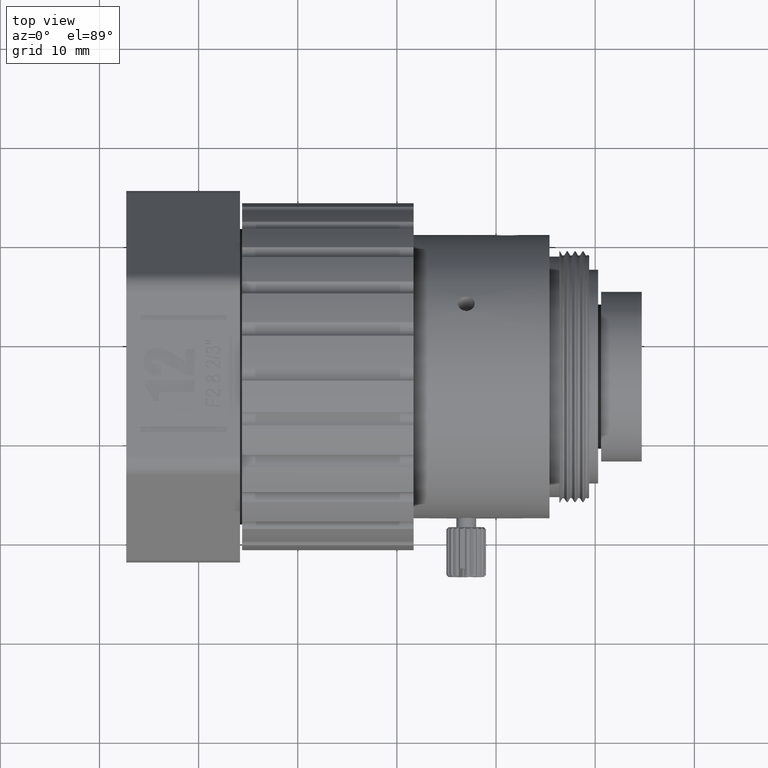
[diagram: clean part render]
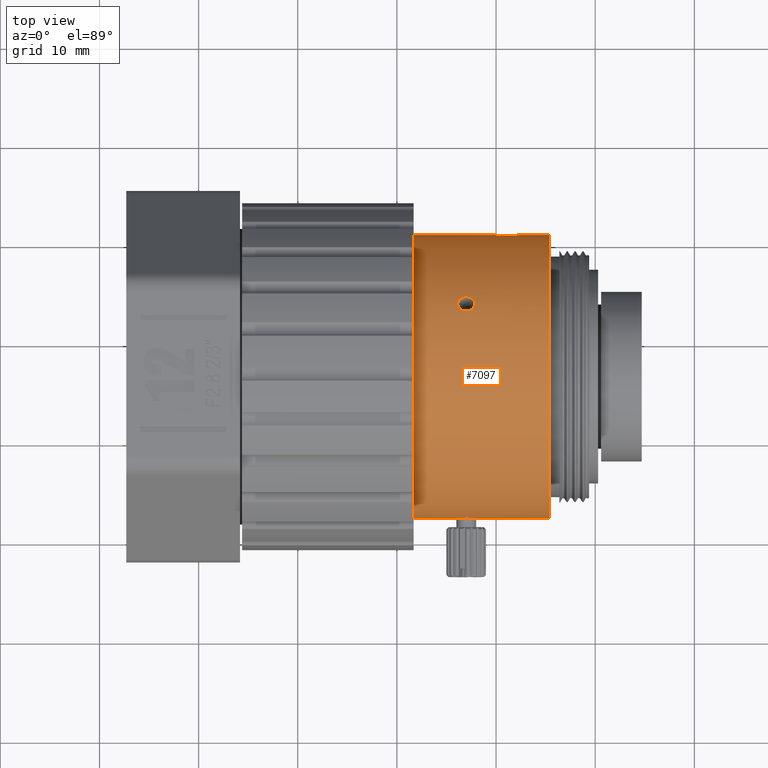
[diagram: same view with one face highlighted and labeled with its STEP entity id]
A machine part, top view. The second image highlights one B-rep face of the part: STEP entity #7097.
In plain terms, the highlighted cylindrical surface (bore or boss wall) has radius 14.3 mm, axis along (1, -0, -0).
Its self-contained STEP definition (entity closure, byte-faithful):
#77 = DIRECTION ( 'NONE',  ( 1.000000000000000000, -0.000000000000000000, -0.000000000000000000 ) ) ;
#328 = CARTESIAN_POINT ( 'NONE',  ( 10457.83927742605738, -3057.646035306092017, 0.1114656669171501802 ) ) ;
#399 = CARTESIAN_POINT ( 'NONE',  ( 10456.30860723796468, -3057.636758587859276, 0.5212214595580578758 ) ) ;
#490 = ORIENTED_EDGE ( 'NONE', *, *, #13166, .T. ) ;
#524 = CARTESIAN_POINT ( 'NONE',  ( 10457.83942973783996, -3036.291554458785413, 12.43931856572615757 ) ) ;
#619 = CARTESIAN_POINT ( 'NONE',  ( 10456.24632349589592, -3036.569324910722571, -12.59272992130355107 ) ) ;
#690 = CARTESIAN_POINT ( 'NONE',  ( 10456.16125840755012, -3036.388724863201332, -12.49385774665149995 ) ) ;
#756 = CARTESIAN_POINT ( 'NONE',  ( 10462.20837841292268, -3029.071384129889793, -0.8608692206809507308 ) ) ;
#831 = CARTESIAN_POINT ( 'NONE',  ( 10461.79067550421314, -3029.097663164272944, -1.215118538068073795 ) ) ;
#836 = CARTESIAN_POINT ( 'NONE',  ( 10456.46669243043834, -3035.615605129227788, -12.03065479707591479 ) ) ;
#900 = CARTESIAN_POINT ( 'NONE',  ( 10461.08935378243405, -3029.114730891623367, -1.400000000000014344 ) ) ;
#905 = CARTESIAN_POINT ( 'NONE',  ( 10456.16177793807947, -3036.003321444138692, -12.27131068950929382 ) ) ;
#968 = CARTESIAN_POINT ( 'NONE',  ( 10460.72225944567981, -3029.111004892552501, -1.363423419065271869 ) ) ;
#1047 = CARTESIAN_POINT ( 'NONE',  ( 10462.21057377370744, -3029.071225823082386, 0.8585009982883268220 ) ) ;
#1221 = AXIS2_PLACEMENT_3D ( 'NONE', #7551, #9900, #7830 ) ;
#1354 = CARTESIAN_POINT ( 'NONE',  ( 10457.41774542119856, -3057.626811248972444, 0.7425588593340550769 ) ) ;
#1432 = CARTESIAN_POINT ( 'NONE',  ( 10456.98935378243186, -3057.620755258274585, -0.8500000000000133005 ) ) ;
#1502 = CARTESIAN_POINT ( 'NONE',  ( 10456.13927782695100, -3057.646044359589268, 0.1102981729169596053 ) ) ;
#1627 = CARTESIAN_POINT ( 'NONE',  ( 10457.41774542119310, -3035.562575244817708, 11.99623373712601548 ) ) ;
#1642 = CARTESIAN_POINT ( 'NONE',  ( 10456.13943013887729, -3057.646035306089288, -0.1114657667403566588 ) ) ;
#1709 = CARTESIAN_POINT ( 'NONE',  ( 10457.43226985704132, -3057.626746409425778, -0.7593918087177606857 ) ) ;
#1717 = CARTESIAN_POINT ( 'NONE',  ( 10456.56096282716499, -3035.562574899336141, -11.99623351273431915 ) ) ;
#1765 = CARTESIAN_POINT ( 'NONE',  ( 10457.43226985703768, -3036.863335098355492, 12.74715291845873999 ) ) ;
#1790 = CARTESIAN_POINT ( 'NONE',  ( 10456.30991116893711, -3035.748088955666390, -12.11476030744859145 ) ) ;
#1866 = CARTESIAN_POINT ( 'NONE',  ( 10457.73212374849754, -3036.569574582587393, -12.59285888975698064 ) ) ;
#1947 = EDGE_CURVE ( 'NONE', #7327, #7327, #14359, .T. ) ;
#1971 = DIRECTION ( 'NONE',  ( 0.000000000000000000, 0.000000000000000000, -1.000000000000000000 ) ) ;
#2003 = CARTESIAN_POINT ( 'NONE',  ( 10462.45237767730578, -3029.049776362277953, -0.3679763575055203240 ) ) ;
#2012 = EDGE_LOOP ( 'NONE', ( #8723 ) ) ;
#2047 = B_SPLINE_CURVE_WITH_KNOTS ( 'NONE', 3,
 ( #12999, #4030, #10667, #1717, #836, #1790, #7364, #905, #2868, #11899, #690, #619, #5267, #13072, #13877, #5114, #5338, #12777, #10596, #13945, #1866, #5050, #3954, #9572, #14018, #12847, #11829, #8466, #12923, #2942 ),
 .UNSPECIFIED., .T., .F.,
 ( 4, 2, 2, 2, 2, 2, 2, 2, 2, 2, 2, 2, 2, 2, 4 ),
 ( 0.000000000000000000, 0.0003321892455475820372, 0.0006643784910951640744, 0.0009965677366427462200, 0.001328756982190328149, 0.001660946227737910294, 0.001993135473285492440, 0.002657513964376944857, 0.002989703209922671499, 0.003321892455468397273, 0.003654081701014123915, 0.003986270946559849690, 0.004318460192105576766, 0.004650649437651302107, 0.005315027928741969561 ),
 .UNSPECIFIED. ) ;
#2073 = CARTESIAN_POINT ( 'NONE',  ( 10462.48922436555767, -3029.046047099148836, -0.1836932407368304654 ) ) ;
#2142 = CARTESIAN_POINT ( 'NONE',  ( 10459.73406932107537, -3029.050353950532099, -0.3627468900842286681 ) ) ;
#2211 = CARTESIAN_POINT ( 'NONE',  ( 10462.31308433493359, -3029.062384883595769, 0.7043762801998675327 ) ) ;
#2741 = ORIENTED_EDGE ( 'NONE', *, *, #4618, .T. ) ;
#2846 = CARTESIAN_POINT ( 'NONE',  ( 10456.24658400504632, -3036.569574893633671, 12.59285905776450321 ) ) ;
#2868 = CARTESIAN_POINT ( 'NONE',  ( 10456.13943013887183, -3036.099505866599429, -12.32842880525052287 ) ) ;
#2942 = CARTESIAN_POINT ( 'NONE',  ( 10456.98935378243186, -3035.472556482938671, -11.93726852500496527 ) ) ;
#3102 = B_SPLINE_CURVE_WITH_KNOTS ( 'NONE', 3,
 ( #10791, #9550, #14068, #6038, #5169, #12752, #2846, #13923, #8440, #6105, #8516, #13992, #3933, #5247, #12970, #10497, #7336, #1627, #8367, #12822, #10714, #4076, #7265, #524, #14135, #12682, #11732, #1765, #8301, #4954 ),
 .UNSPECIFIED., .T., .F.,
 ( 4, 2, 2, 2, 2, 2, 2, 2, 2, 2, 2, 2, 2, 2, 4 ),
 ( 0.000000000000000000, 0.0003321892455475758572, 0.0006643784910951517145, 0.0009965677366427275717, 0.001328756982190303429, 0.001660946227737879069, 0.001993135473285455143, 0.002657513964376893249, 0.002989703209922612518, 0.003321892455468332221, 0.003654081701014051924, 0.003986270946559771627, 0.004318460192105490897, 0.004650649437651210166, 0.005315027928743470964 ),
 .UNSPECIFIED. ) ;
#3155 = CARTESIAN_POINT ( 'NONE',  ( 10459.86562260966093, -3029.062384829248003, -0.7043751142717046276 ) ) ;
#3239 = CARTESIAN_POINT ( 'NONE',  ( 10456.98935378243186, -3036.944799669372514, 12.78726852500507327 ) ) ;
#3288 = CARTESIAN_POINT ( 'NONE',  ( 10460.22932854271858, -3029.089363355635214, -1.120051196483248246 ) ) ;
#3762 = ORIENTED_EDGE ( 'NONE', *, *, #5671, .T. ) ;
#3933 = CARTESIAN_POINT ( 'NONE',  ( 10456.30860723796468, -3035.749285386389147, 12.11551708519103521 ) ) ;
#3954 = CARTESIAN_POINT ( 'NONE',  ( 10457.83927742606102, -3036.292570151446853, -12.43989452208301749 ) ) ;
#3970 = VERTEX_POINT ( 'NONE', #12579 ) ;
#3995 = CARTESIAN_POINT ( 'NONE',  ( 10451.68731230182857, -3043.346037136861469, -14.30000270789389205 ) ) ;
#4021 = CARTESIAN_POINT ( 'NONE',  ( 10456.98935378243186, -3057.620755258274585, -0.8500000000000133005 ) ) ;
#4030 = CARTESIAN_POINT ( 'NONE',  ( 10456.87702782700580, -3035.472556482938671, -11.93726852500496172 ) ) ;
#4076 = CARTESIAN_POINT ( 'NONE',  ( 10457.81692966713672, -3036.003321615189634, 12.27131079121537915 ) ) ;
#4234 = CARTESIAN_POINT ( 'NONE',  ( 10462.48033648506680, -3029.046925462721447, 0.1831622985512846025 ) ) ;
#4380 = CARTESIAN_POINT ( 'NONE',  ( 10462.01479525304057, -3029.084817848655803, -1.054460084201289671 ) ) ;
#4416 = ORIENTED_EDGE ( 'NONE', *, *, #13743, .T. ) ;
#4432 = FACE_OUTER_BOUND ( 'NONE', #8635, .T. ) ;
#4579 = FACE_BOUND ( 'NONE', #10727, .T. ) ;
#4618 = EDGE_CURVE ( 'NONE', #5372, #5372, #2047, .T. ) ;
#4729 = FACE_BOUND ( 'NONE', #5021, .T. ) ;
#4757 = CARTESIAN_POINT ( 'NONE',  ( 10457.83942973784542, -3057.646044359586085, -0.1102980730923516506 ) ) ;
#4828 = CARTESIAN_POINT ( 'NONE',  ( 10456.30991116893529, -3057.636701414468916, -0.5226359878284209115 ) ) ;
#4954 = CARTESIAN_POINT ( 'NONE',  ( 10456.98935378243186, -3036.944799669372514, 12.78726852500507150 ) ) ;
#5021 = EDGE_LOOP ( 'NONE', ( #9390 ) ) ;
#5050 = CARTESIAN_POINT ( 'NONE',  ( 10457.81692966713490, -3036.390128014772017, -12.49463357013800113 ) ) ;
#5114 = CARTESIAN_POINT ( 'NONE',  ( 10457.10168082283963, -3036.944799525721010, -12.78726845309428306 ) ) ;
#5169 = CARTESIAN_POINT ( 'NONE',  ( 10456.46669243044016, -3036.792400462249589, 12.71007789937736021 ) ) ;
#5190 = CARTESIAN_POINT ( 'NONE',  ( 10460.46841347411646, -3029.101442657290136, 1.258113833066945464 ) ) ;
#5214 = VERTEX_POINT ( 'NONE', #13227 ) ;
#5247 = CARTESIAN_POINT ( 'NONE',  ( 10456.54643841072357, -3035.548029501712335, 11.98776084947957621 ) ) ;
#5263 = CARTESIAN_POINT ( 'NONE',  ( 10460.38802982666857, -3029.097663053182259, 1.215117237482326917 ) ) ;
#5267 = CARTESIAN_POINT ( 'NONE',  ( 10456.30860723796650, -3036.652067436338712, -12.63673854474898839 ) ) ;
#5338 = CARTESIAN_POINT ( 'NONE',  ( 10457.21189980034433, -3036.924961799713401, -12.77738996881995170 ) ) ;
#5367 = DIRECTION ( 'NONE',  ( 1.000000000000000000, -0.000000000000000000, -0.000000000000000000 ) ) ;
#5372 = VERTEX_POINT ( 'NONE', #6308 ) ;
#5404 = CARTESIAN_POINT ( 'NONE',  ( 10462.48941796687723, -3029.046028145178752, 0.09036312009869583439 ) ) ;
#5478 = CARTESIAN_POINT ( 'NONE',  ( 10460.72266425066118, -3029.111015220504214, 1.363527748543488460 ) ) ;
#5671 = EDGE_CURVE ( 'NONE', #3970, #3970, #6672, .T. ) ;
#5841 = CARTESIAN_POINT ( 'NONE',  ( 10456.87702782700399, -3057.620755258274130, -0.8500000000000130784 ) ) ;
#5985 = CARTESIAN_POINT ( 'NONE',  ( 10456.76680874887825, -3057.622119096066399, -0.8278809027466155213 ) ) ;
#6038 = CARTESIAN_POINT ( 'NONE',  ( 10456.56096282716499, -3036.848725283865861, 12.73879278346021415 ) ) ;
#6105 = CARTESIAN_POINT ( 'NONE',  ( 10456.13927782695100, -3036.100512505760889, 12.32902044272500675 ) ) ;
#6308 = CARTESIAN_POINT ( 'NONE',  ( 10456.98935378243186, -3035.472556482938671, -11.93726852500496349 ) ) ;
#6339 = CARTESIAN_POINT ( 'NONE',  ( 10459.69837104720682, -3029.046925459474096, -0.1831619713577447850 ) ) ;
#6404 = CARTESIAN_POINT ( 'NONE',  ( 10461.45644500833805, -3029.111004977633002, 1.363424294574676843 ) ) ;
#6473 = CARTESIAN_POINT ( 'NONE',  ( 10461.94937718769143, -3029.089363470372973, 1.120052666308350320 ) ) ;
#6544 = CARTESIAN_POINT ( 'NONE',  ( 10461.79546496524745, -3029.098231073870920, 1.222738227370542052 ) ) ;
#6672 = B_SPLINE_CURVE_WITH_KNOTS ( 'NONE', 3,
 ( #12036, #14367, #11020, #12103, #831, #7571, #4380, #756, #14220, #2003, #2073, #5404, #4234, #12993, #8749, #2211, #1047, #6473, #6544, #6404, #14087, #8823, #5478, #5190, #5263, #9783, #8680, #13140, #9857, #10877, #7720, #12179, #6339, #2142, #14295, #3155, #10948, #3288, #9710, #968, #14157, #900 ),
 .UNSPECIFIED., .T., .F.,
 ( 4, 2, 2, 2, 2, 2, 2, 2, 2, 2, 2, 2, 2, 2, 2, 2, 2, 2, 2, 2, 4 ),
 ( 0.000000000000000000, 0.0005473371281830225268, 0.0008210056922721122247, 0.001094674256361202139, 0.001642011384539382403, 0.002189348512717562666, 0.002463017076806653122, 0.002736685640895743579, 0.003284022769071856269, 0.003831359897247969392, 0.004378697025424082949, 0.004926034153600196072, 0.005199702717688275619, 0.005473371281776355166, 0.006020708409948821033, 0.006568045538121288635, 0.006841714102207520701, 0.007115382666293752767, 0.007662719794464239315, 0.008210056922634725862, 0.008757394050805210675 ),
 .UNSPECIFIED. ) ;
#6746 = FACE_BOUND ( 'NONE', #12643, .T. ) ;
#6850 = CARTESIAN_POINT ( 'NONE',  ( 10457.10168082284508, -3057.620755267822915, 0.8499998396395694877 ) ) ;
#7023 = CIRCLE ( 'NONE', #1221, 14.30000270789389205 ) ;
#7073 = CARTESIAN_POINT ( 'NONE',  ( 10457.81744919585253, -3057.644691476020853, -0.2217195058461416401 ) ) ;
#7097 = ADVANCED_FACE ( 'NONE', ( #11295, #4579, #4432, #4729, #6746, #10049 ), #9022, .T. ) ;
#7145 = CARTESIAN_POINT ( 'NONE',  ( 10456.24658400504632, -3057.640004108776338, -0.4278410784611711981 ) ) ;
#7265 = CARTESIAN_POINT ( 'NONE',  ( 10457.83927742605556, -3036.099505953046901, 12.32842885516573261 ) ) ;
#7327 = VERTEX_POINT ( 'NONE', #3995 ) ;
#7336 = CARTESIAN_POINT ( 'NONE',  ( 10457.21189980033887, -3035.491030498378223, 11.94950934599453340 ) ) ;
#7364 = CARTESIAN_POINT ( 'NONE',  ( 10456.24658400504813, -3035.828532408174397, -12.16501797930317785 ) ) ;
#7551 = CARTESIAN_POINT ( 'NONE',  ( 10465.38935378243150, -3043.346037136861469, 0.000000000000000000 ) ) ;
#7571 = CARTESIAN_POINT ( 'NONE',  ( 10461.94280641943260, -3029.089365361552154, -1.113545605439387520 ) ) ;
#7610 = CARTESIAN_POINT ( 'NONE',  ( 10451.68731230182857, -3043.346037136861469, 0.000000000000000000 ) ) ;
#7720 = CARTESIAN_POINT ( 'NONE',  ( 10459.68948319907759, -3029.046047099123371, 0.1836929169715127430 ) ) ;
#7830 = DIRECTION ( 'NONE',  ( 0.000000000000000000, 0.000000000000000000, -1.000000000000000000 ) ) ;
#7911 = DIRECTION ( 'NONE',  ( 0.000000000000000000, 0.000000000000000000, -1.000000000000000000 ) ) ;
#8069 = CARTESIAN_POINT ( 'NONE',  ( 10473.70570216309352, -3043.346037136861469, 0.000000000000000000 ) ) ;
#8122 = VERTEX_POINT ( 'NONE', #3239 ) ;
#8175 = CARTESIAN_POINT ( 'NONE',  ( 10457.51201568681790, -3057.630105840028591, 0.6794226603445648882 ) ) ;
#8301 = CARTESIAN_POINT ( 'NONE',  ( 10457.21400569328762, -3036.944799669372969, 12.78726852500507327 ) ) ;
#8319 = CARTESIAN_POINT ( 'NONE',  ( 10456.46669243044198, -3057.630105819108849, -0.6794231023014101201 ) ) ;
#8367 = CARTESIAN_POINT ( 'NONE',  ( 10457.51201568681608, -3035.615605501513528, 12.03065503617111531 ) ) ;
#8440 = CARTESIAN_POINT ( 'NONE',  ( 10456.13943013887729, -3036.292570237897962, 12.43989457199094417 ) ) ;
#8466 = CARTESIAN_POINT ( 'NONE',  ( 10457.43226985703950, -3035.548029902803592, -11.98776110974084830 ) ) ;
#8494 = B_SPLINE_CURVE_WITH_KNOTS ( 'NONE', 3,
 ( #1432, #5841, #5985, #11466, #8319, #4828, #7145, #10301, #1642, #1502, #11608, #10515, #399, #9284, #9429, #6850, #11324, #1354, #8175, #10227, #9124, #12632, #328, #4757, #7073, #10587, #9639, #1709, #9566, #4021 ),
 .UNSPECIFIED., .T., .F.,
 ( 4, 2, 2, 2, 2, 2, 2, 2, 2, 2, 2, 2, 2, 2, 4 ),
 ( 0.000000000000000000, 0.0003321892455475399159, 0.0006643784910950798319, 0.0009965677366426198020, 0.001328756982190159664, 0.001660946227737699742, 0.001993135473285239604, 0.002657513964376606152, 0.002989703209922289426, 0.003321892455467973133, 0.003654081701013656407, 0.003986270946559339681, 0.004318460192105023389, 0.004650649437650707096, 0.005315027928742073644 ),
 .UNSPECIFIED. ) ;
#8516 = CARTESIAN_POINT ( 'NONE',  ( 10456.16125840755012, -3036.004695073823314, 12.27213804437711353 ) ) ;
#8557 = VERTEX_POINT ( 'NONE', #12054 ) ;
#8635 = EDGE_LOOP ( 'NONE', ( #4416 ) ) ;
#8680 = CARTESIAN_POINT ( 'NONE',  ( 10460.16391073087289, -3029.084817745123928, 1.054458682081185872 ) ) ;
#8723 = ORIENTED_EDGE ( 'NONE', *, *, #1947, .T. ) ;
#8749 = CARTESIAN_POINT ( 'NONE',  ( 10462.41821805998734, -3029.052866052065838, 0.4500392584583024491 ) ) ;
#8823 = CARTESIAN_POINT ( 'NONE',  ( 10460.90426902616673, -3029.114730840437005, 1.399999479683981196 ) ) ;
#9022 = CYLINDRICAL_SURFACE ( 'NONE', #12828, 14.30000270789389205 ) ;
#9124 = CARTESIAN_POINT ( 'NONE',  ( 10457.73212374850482, -3057.640004118800789, 0.4278407250836032127 ) ) ;
#9284 = CARTESIAN_POINT ( 'NONE',  ( 10456.54643841072175, -3057.626746384577928, 0.7593922862046639244 ) ) ;
#9390 = ORIENTED_EDGE ( 'NONE', *, *, #10926, .T. ) ;
#9429 = CARTESIAN_POINT ( 'NONE',  ( 10456.76470334205624, -3057.620755239175196, 0.8500003207183040033 ) ) ;
#9550 = CARTESIAN_POINT ( 'NONE',  ( 10456.87702782700399, -3036.944799669372060, 12.78726852500507150 ) ) ;
#9566 = CARTESIAN_POINT ( 'NONE',  ( 10457.21400569328762, -3057.620755258275040, -0.8500000000000139666 ) ) ;
#9572 = CARTESIAN_POINT ( 'NONE',  ( 10457.83942973784360, -3036.100512592213363, -12.32902049263394950 ) ) ;
#9639 = CARTESIAN_POINT ( 'NONE',  ( 10457.67010061778637, -3057.636758602475311, -0.5212210550463107772 ) ) ;
#9710 = CARTESIAN_POINT ( 'NONE',  ( 10460.38324030349577, -3029.098230955221879, -1.222736859094170070 ) ) ;
#9783 = CARTESIAN_POINT ( 'NONE',  ( 10460.23589933557014, -3029.089365252076277, 1.113544206077453413 ) ) ;
#9857 = CARTESIAN_POINT ( 'NONE',  ( 10459.86603479745463, -3029.062418989865819, 0.7047916578124017173 ) ) ;
#9900 = DIRECTION ( 'NONE',  ( -1.000000000000000000, 0.000000000000000000, 0.000000000000000000 ) ) ;
#10049 = FACE_BOUND ( 'NONE', #10820, .T. ) ;
#10227 = CARTESIAN_POINT ( 'NONE',  ( 10457.66879669040645, -3057.636701429176355, 0.5226355828803241899 ) ) ;
#10301 = CARTESIAN_POINT ( 'NONE',  ( 10456.16177793807583, -3057.644661778068894, -0.2233229779088309885 ) ) ;
#10497 = CARTESIAN_POINT ( 'NONE',  ( 10457.10168082284690, -3035.472556617039572, 11.93726861345473722 ) ) ;
#10515 = CARTESIAN_POINT ( 'NONE',  ( 10456.24632349589956, -3057.640017264777271, 0.4275600186789718093 ) ) ;
#10587 = CARTESIAN_POINT ( 'NONE',  ( 10457.73238426017087, -3057.640017274940874, -0.4275596591702763294 ) ) ;
#10596 = CARTESIAN_POINT ( 'NONE',  ( 10457.51201568681608, -3036.792400069043197, -12.71007769651567720 ) ) ;
#10667 = CARTESIAN_POINT ( 'NONE',  ( 10456.76680874887643, -3035.491030264172423, -11.94950919180536708 ) ) ;
#10714 = CARTESIAN_POINT ( 'NONE',  ( 10457.73212374849754, -3035.828532709197134, 12.16501816467333974 ) ) ;
#10727 = EDGE_LOOP ( 'NONE', ( #490 ) ) ;
#10791 = CARTESIAN_POINT ( 'NONE',  ( 10456.98935378243186, -3036.944799669372514, 12.78726852500507150 ) ) ;
#10820 = EDGE_LOOP ( 'NONE', ( #3762 ) ) ;
#10877 = CARTESIAN_POINT ( 'NONE',  ( 10459.72632975651140, -3029.049776348617343, 0.3679757121130980413 ) ) ;
#10926 = EDGE_CURVE ( 'NONE', #8122, #8122, #3102, .T. ) ;
#10948 = CARTESIAN_POINT ( 'NONE',  ( 10459.96813284842028, -3029.071225744965886, -0.8584996871454780853 ) ) ;
#11020 = CARTESIAN_POINT ( 'NONE',  ( 10461.45604012298827, -3029.111015308526476, -1.363528656417956730 ) ) ;
#11295 = FACE_OUTER_BOUND ( 'NONE', #2012, .T. ) ;
#11324 = CARTESIAN_POINT ( 'NONE',  ( 10457.21189980034069, -3057.622119112495056, 0.8278806228254292909 ) ) ;
#11466 = CARTESIAN_POINT ( 'NONE',  ( 10456.56096282716317, -3057.626811227381040, -0.7425592707258542591 ) ) ;
#11578 = AXIS2_PLACEMENT_3D ( 'NONE', #7610, #5367, #1971 ) ;
#11608 = CARTESIAN_POINT ( 'NONE',  ( 10456.16125840755012, -3057.644691473561579, 0.2217197022744075430 ) ) ;
#11732 = CARTESIAN_POINT ( 'NONE',  ( 10457.67010061779001, -3036.652067078711752, 12.63673835515257871 ) ) ;
#11829 = CARTESIAN_POINT ( 'NONE',  ( 10457.67010061779001, -3035.749285729396888, -12.11551730010614847 ) ) ;
#11899 = CARTESIAN_POINT ( 'NONE',  ( 10456.13927782694918, -3036.291554545233794, -12.43931861564191088 ) ) ;
#12036 = CARTESIAN_POINT ( 'NONE',  ( 10461.08935378243405, -3029.114730891623367, -1.400000000000014344 ) ) ;
#12054 = CARTESIAN_POINT ( 'NONE',  ( 10456.98935378243186, -3057.620755258273675, -0.8500000000000130784 ) ) ;
#12103 = CARTESIAN_POINT ( 'NONE',  ( 10461.71029163134517, -3029.101442765951106, -1.258115060354918047 ) ) ;
#12179 = CARTESIAN_POINT ( 'NONE',  ( 10459.68928959810000, -3029.046028145189666, -0.09036295821102342807 ) ) ;
#12579 = CARTESIAN_POINT ( 'NONE',  ( 10461.08935378243041, -3029.114730891622912, -1.400000000000014122 ) ) ;
#12632 = CARTESIAN_POINT ( 'NONE',  ( 10457.81692966713490, -3057.644661780624119, 0.2233227789225555038 ) ) ;
#12643 = EDGE_LOOP ( 'NONE', ( #2741 ) ) ;
#12682 = CARTESIAN_POINT ( 'NONE',  ( 10457.73238426017087, -3036.569324594296631, 12.59272975035312392 ) ) ;
#12752 = CARTESIAN_POINT ( 'NONE',  ( 10456.30991116893892, -3036.653321040449555, 12.63739629527703201 ) ) ;
#12777 = CARTESIAN_POINT ( 'NONE',  ( 10457.41774542119128, -3036.848724916796073, -12.73879259646004591 ) ) ;
#12822 = CARTESIAN_POINT ( 'NONE',  ( 10457.66879669040281, -3035.748089299009280, 12.11476052265969194 ) ) ;
#12828 = AXIS2_PLACEMENT_3D ( 'NONE', #8069, #77, #7911 ) ;
#12847 = CARTESIAN_POINT ( 'NONE',  ( 10457.73238426017269, -3035.828769541346901, -12.16517009118279979 ) ) ;
#12923 = CARTESIAN_POINT ( 'NONE',  ( 10457.21400569328762, -3035.472556482939126, -11.93726852500497237 ) ) ;
#12970 = CARTESIAN_POINT ( 'NONE',  ( 10456.76470334205624, -3035.472556214736414, 11.93726834810700765 ) ) ;
#12993 = CARTESIAN_POINT ( 'NONE',  ( 10462.44463808659020, -3029.050353965511931, 0.3627475176219060460 ) ) ;
#12999 = CARTESIAN_POINT ( 'NONE',  ( 10456.98935378243186, -3035.472556482938671, -11.93726852500496527 ) ) ;
#13072 = CARTESIAN_POINT ( 'NONE',  ( 10456.54643841072539, -3036.863335524295508, -12.74715313568414743 ) ) ;
#13140 = CARTESIAN_POINT ( 'NONE',  ( 10459.97032819729247, -3029.071384051288987, 0.8608679082005116223 ) ) ;
#13166 = EDGE_CURVE ( 'NONE', #8557, #8557, #8494, .T. ) ;
#13227 = CARTESIAN_POINT ( 'NONE',  ( 10465.38935378243150, -3043.346037136861469, -14.30000270789389205 ) ) ;
#13743 = EDGE_CURVE ( 'NONE', #5214, #5214, #7023, .T. ) ;
#13877 = CARTESIAN_POINT ( 'NONE',  ( 10456.76470334205442, -3036.944799956670067, -12.78726866882527879 ) ) ;
#13923 = CARTESIAN_POINT ( 'NONE',  ( 10456.16177793807947, -3036.390128188375456, 12.49463366741828807 ) ) ;
#13945 = CARTESIAN_POINT ( 'NONE',  ( 10457.66879669040100, -3036.653320682399226, -12.63739610554002724 ) ) ;
#13992 = CARTESIAN_POINT ( 'NONE',  ( 10456.24632349589956, -3035.828769235086838, 12.16516990262456588 ) ) ;
#14018 = CARTESIAN_POINT ( 'NONE',  ( 10457.81744919585071, -3036.004695242704202, -12.27213814472022868 ) ) ;
#14068 = CARTESIAN_POINT ( 'NONE',  ( 10456.76680874887643, -3036.924962050346949, 12.77739009455201469 ) ) ;
#14087 = CARTESIAN_POINT ( 'NONE',  ( 10461.27443066716478, -3029.114730942807455, 1.400000520304991003 ) ) ;
#14135 = CARTESIAN_POINT ( 'NONE',  ( 10457.81744919585071, -3036.388724691861171, 12.49385765056641873 ) ) ;
#14157 = CARTESIAN_POINT ( 'NONE',  ( 10460.90427254477254, -3029.114730891624276, -1.400000000000014566 ) ) ;
#14220 = CARTESIAN_POINT ( 'NONE',  ( 10462.31267215574735, -3029.062419043414138, -0.7047928030230640184 ) ) ;
#14295 = CARTESIAN_POINT ( 'NONE',  ( 10459.76048925609211, -3029.052866028634071, -0.4500384892917004831 ) ) ;
#14359 = CIRCLE ( 'NONE', #11578, 14.30000270789389205 ) ;
#14367 = CARTESIAN_POINT ( 'NONE',  ( 10461.27443502009737, -3029.114730891622003, -1.400000000000014122 ) ) ;